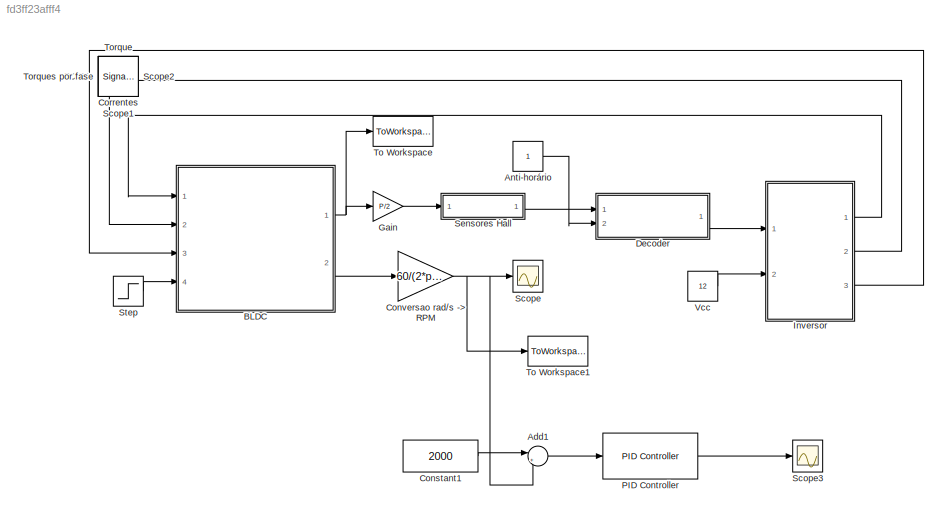
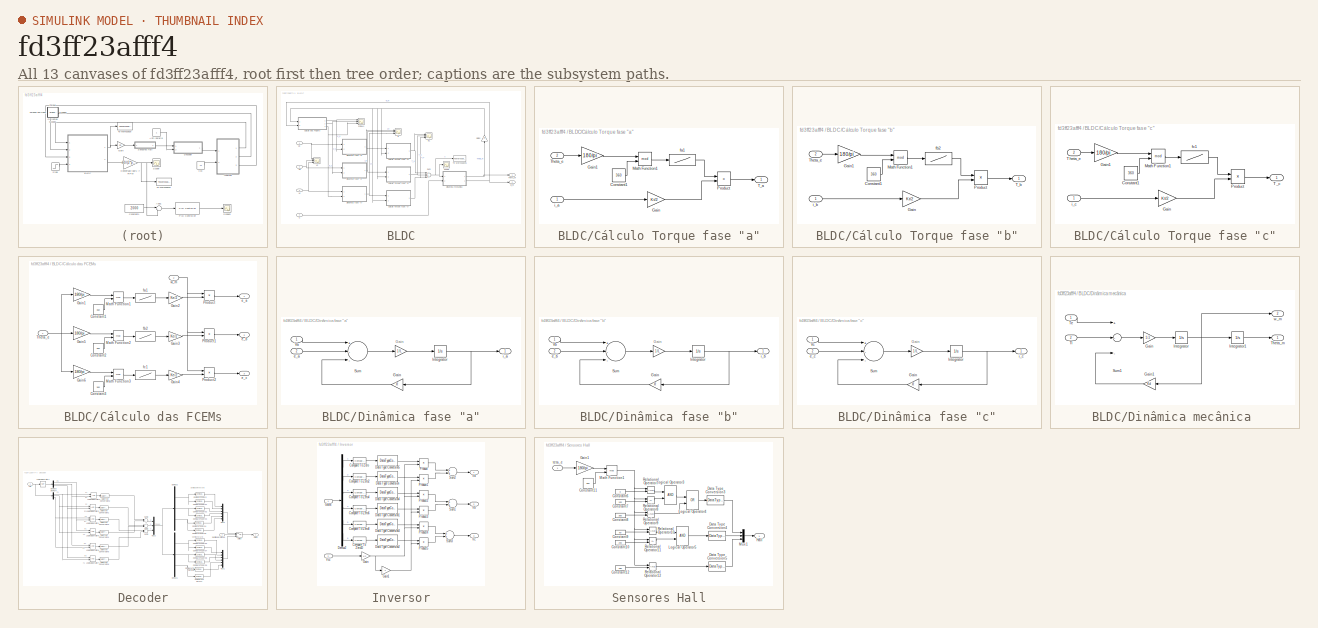
[diagram: thumbnail index - all 13 canvases of the model, root first then tree order]
MODEL slx_fd3ff23afff4
KIND model
BLOCK [Sum] Add1
  IconShape = round
  InputSameDT = off
  Inputs = |+-
  OutDataTypeStr = Inherit: Inherit via internal rule
  Ports = [2, 1]
  SaturateOnIntegerOverflow = off
BLOCK [Constant] Anti-horário
BLOCK [SubSystem] BLDC
  FunctionWithSeparateData = off
  MaskHideContents = off
  MinAlgLoopOccurrences = off
  Opaque = off
  Ports = [4, 2]
  PropExecContextOutsideSubsystem = off
  RTWSystemCode = Auto
  RequestExecContextInheritance = off
BLOCK [SubSystem] BLDC/Cálculo Torque fase "a"
  FunctionWithSeparateData = off
  MaskHideContents = off
  MinAlgLoopOccurrences = off
  Opaque = off
  Ports = [2, 1]
  PropExecContextOutsideSubsystem = off
  RTWSystemCode = Auto
  RequestExecContextInheritance = off
BLOCK [Constant] BLDC/Cálculo Torque fase "a"/Constant1
  Value = 360
BLOCK [Gain] BLDC/Cálculo Torque fase "a"/Gain
  Gain = Kt/2
  OutDataTypeStr = Inherit: Inherit via internal rule
  ParamDataTypeStr = Inherit: Inherit via internal rule
  SaturateOnIntegerOverflow = off
BLOCK [Gain] BLDC/Cálculo Torque fase "a"/Gain1
  Gain = 180/pi
  OutDataTypeStr = Inherit: Inherit via internal rule
  ParamDataTypeStr = Inherit: Inherit via internal rule
  SaturateOnIntegerOverflow = off
BLOCK [Math] BLDC/Cálculo Torque fase "a"/Math Function1
  Operator = mod
  Ports = [2, 1]
BLOCK [Product] BLDC/Cálculo Torque fase "a"/Product
  InputSameDT = off
  OutDataTypeStr = Inherit: Inherit via internal rule
  Ports = [2, 1]
  SaturateOnIntegerOverflow = off
BLOCK [Outport] BLDC/Cálculo Torque fase "a"/T_a
  IconDisplay = Port number
BLOCK [Inport] BLDC/Cálculo Torque fase "a"/Theta_e
  IconDisplay = Port number
  Port = 2
BLOCK [Lookup] BLDC/Cálculo Torque fase "a"/fa1
  InputValues = [0 30 60 90 120 150 180 210 240 270 300 330 360]
  SaturateOnIntegerOverflow = off
  Table = [ 1 1 1 0 -1 -1 -1 -1 -1 0 1 1 1]
BLOCK [Inport] BLDC/Cálculo Torque fase "a"/i_a
  IconDisplay = Port number
BLOCK [SubSystem] BLDC/Cálculo Torque fase "b"
  FunctionWithSeparateData = off
  MaskHideContents = off
  MinAlgLoopOccurrences = off
  Opaque = off
  Ports = [2, 1]
  PropExecContextOutsideSubsystem = off
  RTWSystemCode = Auto
  RequestExecContextInheritance = off
BLOCK [Constant] BLDC/Cálculo Torque fase "b"/Constant1
  Value = 360
BLOCK [Gain] BLDC/Cálculo Torque fase "b"/Gain
  Gain = Kt/2
  OutDataTypeStr = Inherit: Inherit via internal rule
  ParamDataTypeStr = Inherit: Inherit via internal rule
  SaturateOnIntegerOverflow = off
BLOCK [Gain] BLDC/Cálculo Torque fase "b"/Gain1
  Gain = 180/pi
  OutDataTypeStr = Inherit: Inherit via internal rule
  ParamDataTypeStr = Inherit: Inherit via internal rule
  SaturateOnIntegerOverflow = off
BLOCK [Math] BLDC/Cálculo Torque fase "b"/Math Function1
  Operator = mod
  Ports = [2, 1]
BLOCK [Product] BLDC/Cálculo Torque fase "b"/Product
  InputSameDT = off
  OutDataTypeStr = Inherit: Inherit via internal rule
  Ports = [2, 1]
  SaturateOnIntegerOverflow = off
BLOCK [Outport] BLDC/Cálculo Torque fase "b"/T_b
  IconDisplay = Port number
BLOCK [Inport] BLDC/Cálculo Torque fase "b"/Theta_e
  IconDisplay = Port number
  Port = 2
BLOCK [Lookup] BLDC/Cálculo Torque fase "b"/fb2
  InputValues = [0 30 60 90 120 150 180 210 240 270 300 330 360]
  SaturateOnIntegerOverflow = off
  Table = [-1 0 1 1 1 1 1 0 -1 -1 -1 -1 -1]
BLOCK [Inport] BLDC/Cálculo Torque fase "b"/i_b
  IconDisplay = Port number
BLOCK [SubSystem] BLDC/Cálculo Torque fase "c"
  FunctionWithSeparateData = off
  MaskHideContents = off
  MinAlgLoopOccurrences = off
  Opaque = off
  Ports = [2, 1]
  PropExecContextOutsideSubsystem = off
  RTWSystemCode = Auto
  RequestExecContextInheritance = off
BLOCK [Constant] BLDC/Cálculo Torque fase "c"/Constant1
  Value = 360
BLOCK [Gain] BLDC/Cálculo Torque fase "c"/Gain
  Gain = Kt/2
  OutDataTypeStr = Inherit: Inherit via internal rule
  ParamDataTypeStr = Inherit: Inherit via internal rule
  SaturateOnIntegerOverflow = off
BLOCK [Gain] BLDC/Cálculo Torque fase "c"/Gain1
  Gain = 180/pi
  OutDataTypeStr = Inherit: Inherit via internal rule
  ParamDataTypeStr = Inherit: Inherit via internal rule
  SaturateOnIntegerOverflow = off
BLOCK [Math] BLDC/Cálculo Torque fase "c"/Math Function1
  Operator = mod
  Ports = [2, 1]
BLOCK [Product] BLDC/Cálculo Torque fase "c"/Product
  InputSameDT = off
  OutDataTypeStr = Inherit: Inherit via internal rule
  Ports = [2, 1]
  SaturateOnIntegerOverflow = off
BLOCK [Outport] BLDC/Cálculo Torque fase "c"/T_c
  IconDisplay = Port number
BLOCK [Inport] BLDC/Cálculo Torque fase "c"/Theta_e
  IconDisplay = Port number
  Port = 2
BLOCK [Lookup] BLDC/Cálculo Torque fase "c"/fc1
  InputValues = [0 30 60 90 120 150 180 210 240 270 300 330 360]
  SaturateOnIntegerOverflow = off
  Table = [-1 -1 -1 -1 -1 0 1 1 1 1 1 0 -1]
BLOCK [Inport] BLDC/Cálculo Torque fase "c"/i_c
  IconDisplay = Port number
BLOCK [SubSystem] BLDC/Cálculo das FCEMs
  FunctionWithSeparateData = off
  MaskHideContents = off
  MinAlgLoopOccurrences = off
  Opaque = off
  Ports = [2, 3]
  PropExecContextOutsideSubsystem = off
  RTWSystemCode = Auto
  RequestExecContextInheritance = off
BLOCK [Constant] BLDC/Cálculo das FCEMs/Constant1
  Value = 360
BLOCK [Constant] BLDC/Cálculo das FCEMs/Constant2
  Value = 360
BLOCK [Constant] BLDC/Cálculo das FCEMs/Constant3
  Value = 360
BLOCK [Gain] BLDC/Cálculo das FCEMs/Gain1
  Gain = 180/pi
  OutDataTypeStr = Inherit: Inherit via internal rule
  ParamDataTypeStr = Inherit: Inherit via internal rule
  SaturateOnIntegerOverflow = off
BLOCK [Gain] BLDC/Cálculo das FCEMs/Gain2
  Gain = Ke/2
  OutDataTypeStr = Inherit: Inherit via internal rule
  ParamDataTypeStr = Inherit: Inherit via internal rule
  SaturateOnIntegerOverflow = off
BLOCK [Gain] BLDC/Cálculo das FCEMs/Gain3
  Gain = Ke/2
  OutDataTypeStr = Inherit: Inherit via internal rule
  ParamDataTypeStr = Inherit: Inherit via internal rule
  SaturateOnIntegerOverflow = off
BLOCK [Gain] BLDC/Cálculo das FCEMs/Gain4
  Gain = Ke/2
  OutDataTypeStr = Inherit: Inherit via internal rule
  ParamDataTypeStr = Inherit: Inherit via internal rule
  SaturateOnIntegerOverflow = off
BLOCK [Gain] BLDC/Cálculo das FCEMs/Gain5
  Gain = 180/pi
  OutDataTypeStr = Inherit: Inherit via internal rule
  ParamDataTypeStr = Inherit: Inherit via internal rule
  SaturateOnIntegerOverflow = off
BLOCK [Gain] BLDC/Cálculo das FCEMs/Gain6
  Gain = 180/pi
  OutDataTypeStr = Inherit: Inherit via internal rule
  ParamDataTypeStr = Inherit: Inherit via internal rule
  SaturateOnIntegerOverflow = off
BLOCK [Math] BLDC/Cálculo das FCEMs/Math Function1
  Operator = mod
  Ports = [2, 1]
BLOCK [Math] BLDC/Cálculo das FCEMs/Math Function2
  Operator = mod
  Ports = [2, 1]
BLOCK [Math] BLDC/Cálculo das FCEMs/Math Function3
  Operator = mod
  Ports = [2, 1]
BLOCK [Product] BLDC/Cálculo das FCEMs/Product
  InputSameDT = off
  OutDataTypeStr = Inherit: Inherit via internal rule
  Ports = [2, 1]
  SaturateOnIntegerOverflow = off
BLOCK [Product] BLDC/Cálculo das FCEMs/Product1
  InputSameDT = off
  OutDataTypeStr = Inherit: Inherit via internal rule
  Ports = [2, 1]
  SaturateOnIntegerOverflow = off
BLOCK [Product] BLDC/Cálculo das FCEMs/Product2
  InputSameDT = off
  OutDataTypeStr = Inherit: Inherit via internal rule
  Ports = [2, 1]
  SaturateOnIntegerOverflow = off
BLOCK [Inport] BLDC/Cálculo das FCEMs/Theta_e
  IconDisplay = Port number
BLOCK [Outport] BLDC/Cálculo das FCEMs/e_a
  IconDisplay = Port number
BLOCK [Outport] BLDC/Cálculo das FCEMs/e_b
  IconDisplay = Port number
  Port = 2
BLOCK [Outport] BLDC/Cálculo das FCEMs/e_c
  IconDisplay = Port number
  Port = 3
BLOCK [Lookup] BLDC/Cálculo das FCEMs/fa1
  InputValues = [0 30 60 90 120 150 180 210 240 270 300 330 360]
  SaturateOnIntegerOverflow = off
  Table = [ 1 1 1 0 -1 -1 -1 -1 -1 0 1 1 1]
BLOCK [Lookup] BLDC/Cálculo das FCEMs/fb2
  InputValues = [0 30 60 90 120 150 180 210 240 270 300 330 360]
  SaturateOnIntegerOverflow = off
  Table = [-1 0 1 1 1 1 1 0 -1 -1 -1 -1 -1]
BLOCK [Lookup] BLDC/Cálculo das FCEMs/fc1
  InputValues = [0 30 60 90 120 150 180 210 240 270 300 330 360]
  SaturateOnIntegerOverflow = off
  Table = [-1 -1 -1 -1 -1 0 1 1 1 1 1 0 -1]
BLOCK [Inport] BLDC/Cálculo das FCEMs/w_m
  IconDisplay = Port number
  Port = 2
BLOCK [SubSystem] BLDC/Dinâmica fase "a"
  FunctionWithSeparateData = off
  MaskHideContents = off
  MinAlgLoopOccurrences = off
  Opaque = off
  Ports = [2, 1]
  PropExecContextOutsideSubsystem = off
  RTWSystemCode = Auto
  RequestExecContextInheritance = off
BLOCK [Gain] BLDC/Dinâmica fase "a"/ 
  Gain = 1/L
  OutDataTypeStr = Inherit: Inherit via internal rule
  ParamDataTypeStr = Inherit: Inherit via internal rule
  SaturateOnIntegerOverflow = off
BLOCK [Gain] BLDC/Dinâmica fase "a"/Gain
  Gain = R
  OutDataTypeStr = Inherit: Inherit via internal rule
  ParamDataTypeStr = Inherit: Inherit via internal rule
  SaturateOnIntegerOverflow = off
BLOCK [Integrator] BLDC/Dinâmica fase "a"/Integrator
  Ports = [1, 1]
BLOCK [Sum] BLDC/Dinâmica fase "a"/Sum
  InputSameDT = off
  Inputs = +--
  OutDataTypeStr = Inherit: Inherit via internal rule
  Ports = [3, 1]
  SaturateOnIntegerOverflow = off
BLOCK [Inport] BLDC/Dinâmica fase "a"/Va
  IconDisplay = Port number
BLOCK [Inport] BLDC/Dinâmica fase "a"/e_a
  IconDisplay = Port number
  Port = 2
BLOCK [Outport] BLDC/Dinâmica fase "a"/i_a
  IconDisplay = Port number
BLOCK [SubSystem] BLDC/Dinâmica fase "b"
  FunctionWithSeparateData = off
  MaskHideContents = off
  MinAlgLoopOccurrences = off
  Opaque = off
  Ports = [2, 1]
  PropExecContextOutsideSubsystem = off
  RTWSystemCode = Auto
  RequestExecContextInheritance = off
BLOCK [Gain] BLDC/Dinâmica fase "b"/ 
  Gain = 1/L
  OutDataTypeStr = Inherit: Inherit via internal rule
  ParamDataTypeStr = Inherit: Inherit via internal rule
  SaturateOnIntegerOverflow = off
BLOCK [Gain] BLDC/Dinâmica fase "b"/Gain
  Gain = R
  OutDataTypeStr = Inherit: Inherit via internal rule
  ParamDataTypeStr = Inherit: Inherit via internal rule
  SaturateOnIntegerOverflow = off
BLOCK [Integrator] BLDC/Dinâmica fase "b"/Integrator
  Ports = [1, 1]
BLOCK [Sum] BLDC/Dinâmica fase "b"/Sum
  InputSameDT = off
  Inputs = +--
  OutDataTypeStr = Inherit: Inherit via internal rule
  Ports = [3, 1]
  SaturateOnIntegerOverflow = off
BLOCK [Inport] BLDC/Dinâmica fase "b"/Vb
  IconDisplay = Port number
BLOCK [Inport] BLDC/Dinâmica fase "b"/e_b
  IconDisplay = Port number
  Port = 2
BLOCK [Outport] BLDC/Dinâmica fase "b"/i_b
  IconDisplay = Port number
BLOCK [SubSystem] BLDC/Dinâmica fase "c"
  FunctionWithSeparateData = off
  MaskHideContents = off
  MinAlgLoopOccurrences = off
  Opaque = off
  Ports = [2, 1]
  PropExecContextOutsideSubsystem = off
  RTWSystemCode = Auto
  RequestExecContextInheritance = off
BLOCK [Gain] BLDC/Dinâmica fase "c"/ 
  Gain = 1/L
  OutDataTypeStr = Inherit: Inherit via internal rule
  ParamDataTypeStr = Inherit: Inherit via internal rule
  SaturateOnIntegerOverflow = off
BLOCK [Gain] BLDC/Dinâmica fase "c"/Gain
  Gain = R
  OutDataTypeStr = Inherit: Inherit via internal rule
  ParamDataTypeStr = Inherit: Inherit via internal rule
  SaturateOnIntegerOverflow = off
BLOCK [Integrator] BLDC/Dinâmica fase "c"/Integrator
  Ports = [1, 1]
BLOCK [Sum] BLDC/Dinâmica fase "c"/Sum
  InputSameDT = off
  Inputs = +--
  OutDataTypeStr = Inherit: Inherit via internal rule
  Ports = [3, 1]
  SaturateOnIntegerOverflow = off
BLOCK [Inport] BLDC/Dinâmica fase "c"/Vc
  IconDisplay = Port number
BLOCK [Inport] BLDC/Dinâmica fase "c"/e_c
  IconDisplay = Port number
  Port = 2
BLOCK [Outport] BLDC/Dinâmica fase "c"/i_c
  IconDisplay = Port number
BLOCK [SubSystem] BLDC/Dinâmica mecânica 
  FunctionWithSeparateData = off
  MaskHideContents = off
  MinAlgLoopOccurrences = off
  Opaque = off
  Ports = [2, 2]
  PropExecContextOutsideSubsystem = off
  RTWSystemCode = Auto
  RequestExecContextInheritance = off
BLOCK [Gain] BLDC/Dinâmica mecânica /Gain
  Gain = 1/J
  OutDataTypeStr = Inherit: Inherit via internal rule
  ParamDataTypeStr = Inherit: Inherit via internal rule
  SaturateOnIntegerOverflow = off
BLOCK [Gain] BLDC/Dinâmica mecânica /Gain1
  Gain = Kd
  OutDataTypeStr = Inherit: Inherit via internal rule
  ParamDataTypeStr = Inherit: Inherit via internal rule
  SaturateOnIntegerOverflow = off
BLOCK [Integrator] BLDC/Dinâmica mecânica /Integrator
  Ports = [1, 1]
BLOCK [Integrator] BLDC/Dinâmica mecânica /Integrator1
  Ports = [1, 1]
BLOCK [Sum] BLDC/Dinâmica mecânica /Sum1
  InputSameDT = off
  Inputs = +--
  OutDataTypeStr = Inherit: Inherit via internal rule
  Ports = [3, 1]
  SaturateOnIntegerOverflow = off
BLOCK [Inport] BLDC/Dinâmica mecânica /Te
  IconDisplay = Port number
BLOCK [Outport] BLDC/Dinâmica mecânica /Theta_m
  IconDisplay = Port number
BLOCK [Inport] BLDC/Dinâmica mecânica /Tl
  IconDisplay = Port number
  Port = 2
BLOCK [Outport] BLDC/Dinâmica mecânica /w_m
  IconDisplay = Port number
  Port = 2
BLOCK [Scope] BLDC/FCEMs
  DataFormat = StructureWithTime
  Floating = off
  LimitDataPoints = off
  NumInputPorts = 3
  Ports = [3]
  SampleTime = 0
  SaveName = ScopeData5
  ShowLegends = off
  TimeRange = 1
  YMax = 510~5~5
  YMin = 420~-5~-5
  ZoomMode = yonly
BLOCK [Gain] BLDC/Gain2
  Gain = P/2
  OutDataTypeStr = Inherit: Inherit via internal rule
  ParamDataTypeStr = Inherit: Inherit via internal rule
  SaturateOnIntegerOverflow = off
BLOCK [Scope] BLDC/Scope
  DataFormat = StructureWithTime
  Floating = off
  LimitDataPoints = off
  NumInputPorts = 1
  Ports = [1]
  SampleTime = 0
  SaveName = ScopeData4
  ShowLegends = off
  TimeRange = 1
  YMax = 510
  YMin = 420
  ZoomMode = yonly
BLOCK [Sum] BLDC/Sum
  InputSameDT = off
  Inputs = +++
  OutDataTypeStr = Inherit: Inherit via internal rule
  Ports = [3, 1]
  SaturateOnIntegerOverflow = off
BLOCK [Outport] BLDC/Theta_m
  IconDisplay = Port number
BLOCK [Inport] BLDC/Tl
  IconDisplay = Port number
  Port = 4
BLOCK [ToWorkspace] BLDC/To Workspace1
  MaxDataPoints = inf
  Ports = [1]
  SampleTime = -1
  SaveFormat = Timeseries
  VariableName = Te_BLDC
BLOCK [Inport] BLDC/Va
  IconDisplay = Port number
BLOCK [Inport] BLDC/Vb
  IconDisplay = Port number
  Port = 2
BLOCK [Inport] BLDC/Vc
  IconDisplay = Port number
  Port = 3
BLOCK [Scope] BLDC/Vs
  DataFormat = StructureWithTime
  Floating = off
  LimitDataPoints = off
  NumInputPorts = 3
  Ports = [3]
  SampleTime = 0
  SaveName = ScopeData2
  ShowLegends = off
  TimeRange = 1
  YMax = 510~5~5
  YMin = 420~-5~-5
  ZoomMode = xonly
BLOCK [Scope] BLDC/is
  DataFormat = StructureWithTime
  Floating = off
  LimitDataPoints = off
  NumInputPorts = 3
  Ports = [3]
  SampleTime = 0
  SaveName = ScopeData3
  ShowLegends = off
  TimeRange = 1
  YMax = 510~5~5
  YMin = 420~-5~-5
  ZoomMode = xonly
BLOCK [Scope] BLDC/is1
  DataFormat = StructureWithTime
  Floating = off
  LimitDataPoints = off
  NumInputPorts = 3
  Ports = [3]
  SampleTime = 0
  SaveName = ScopeData6
  ShowLegends = off
  TimeRange = 1
  YMax = 510~5~5
  YMin = 420~-5~-5
  ZoomMode = xonly
BLOCK [Outport] BLDC/w_m
  IconDisplay = Port number
  Port = 2
BLOCK [Constant] Constant1
  Value = 2000
BLOCK [Gain] Conversao rad//s -> RPM
  Gain = 60/(2*pi)
  OutDataTypeStr = Inherit: Inherit via internal rule
  ParamDataTypeStr = Inherit: Inherit via internal rule
  SaturateOnIntegerOverflow = off
BLOCK [SignalViewerScope] Correntes
  IOType = viewer
  LimitDataPoints = off
  MaxDataPoints = 7500
  NumInputPorts = 3
  Ports = []
  RefreshTime = 0.035000
  ShowDataMarkers = off
  ShowLegends = off
  YMax = 5~5~5
  YMin = -5~-5~-5
  ZoomMode = yonly
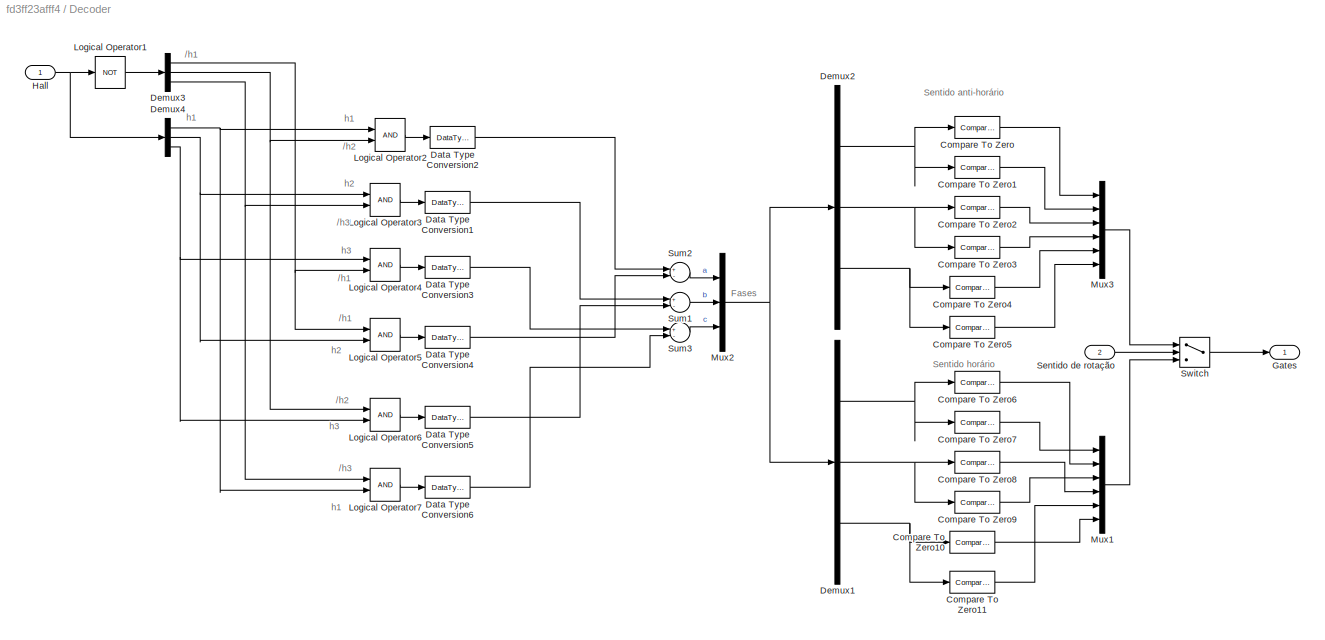
BLOCK [SubSystem] Decoder
  FunctionWithSeparateData = off
  MaskHideContents = off
  MinAlgLoopOccurrences = off
  Opaque = off
  Ports = [2, 1]
  PropExecContextOutsideSubsystem = off
  RTWSystemCode = Auto
  RequestExecContextInheritance = off
BLOCK [Reference] Decoder/Compare To Zero  REF=simulink/Logic and Bit
Operations/Compare
To Zero
  OutDataTypeStr = boolean
  Ports = [1, 1]
  SourceBlock = simulink/Logic and Bit\nOperations/Compare\nTo Zero
  SourceType = Compare To Zero
  ZeroCross = off
  relop = >
BLOCK [Reference] Decoder/Compare To Zero1  REF=simulink/Logic and Bit
Operations/Compare
To Zero
  OutDataTypeStr = boolean
  Ports = [1, 1]
  SourceBlock = simulink/Logic and Bit\nOperations/Compare\nTo Zero
  SourceType = Compare To Zero
  ZeroCross = off
  relop = <
BLOCK [Reference] Decoder/Compare To Zero10  REF=simulink/Logic and Bit
Operations/Compare
To Zero
  OutDataTypeStr = boolean
  Ports = [1, 1]
  SourceBlock = simulink/Logic and Bit\nOperations/Compare\nTo Zero
  SourceType = Compare To Zero
  ZeroCross = off
  relop = >
BLOCK [Reference] Decoder/Compare To Zero11  REF=simulink/Logic and Bit
Operations/Compare
To Zero
  OutDataTypeStr = boolean
  Ports = [1, 1]
  SourceBlock = simulink/Logic and Bit\nOperations/Compare\nTo Zero
  SourceType = Compare To Zero
  ZeroCross = off
  relop = <
BLOCK [Reference] Decoder/Compare To Zero2  REF=simulink/Logic and Bit
Operations/Compare
To Zero
  OutDataTypeStr = boolean
  Ports = [1, 1]
  SourceBlock = simulink/Logic and Bit\nOperations/Compare\nTo Zero
  SourceType = Compare To Zero
  ZeroCross = off
  relop = >
BLOCK [Reference] Decoder/Compare To Zero3  REF=simulink/Logic and Bit
Operations/Compare
To Zero
  OutDataTypeStr = boolean
  Ports = [1, 1]
  SourceBlock = simulink/Logic and Bit\nOperations/Compare\nTo Zero
  SourceType = Compare To Zero
  ZeroCross = off
  relop = <
BLOCK [Reference] Decoder/Compare To Zero4  REF=simulink/Logic and Bit
Operations/Compare
To Zero
  OutDataTypeStr = boolean
  Ports = [1, 1]
  SourceBlock = simulink/Logic and Bit\nOperations/Compare\nTo Zero
  SourceType = Compare To Zero
  ZeroCross = off
  relop = >
BLOCK [Reference] Decoder/Compare To Zero5  REF=simulink/Logic and Bit
Operations/Compare
To Zero
  OutDataTypeStr = boolean
  Ports = [1, 1]
  SourceBlock = simulink/Logic and Bit\nOperations/Compare\nTo Zero
  SourceType = Compare To Zero
  ZeroCross = off
  relop = <
BLOCK [Reference] Decoder/Compare To Zero6  REF=simulink/Logic and Bit
Operations/Compare
To Zero
  OutDataTypeStr = boolean
  Ports = [1, 1]
  SourceBlock = simulink/Logic and Bit\nOperations/Compare\nTo Zero
  SourceType = Compare To Zero
  ZeroCross = off
  relop = >
BLOCK [Reference] Decoder/Compare To Zero7  REF=simulink/Logic and Bit
Operations/Compare
To Zero
  OutDataTypeStr = boolean
  Ports = [1, 1]
  SourceBlock = simulink/Logic and Bit\nOperations/Compare\nTo Zero
  SourceType = Compare To Zero
  ZeroCross = off
  relop = <
BLOCK [Reference] Decoder/Compare To Zero8  REF=simulink/Logic and Bit
Operations/Compare
To Zero
  OutDataTypeStr = boolean
  Ports = [1, 1]
  SourceBlock = simulink/Logic and Bit\nOperations/Compare\nTo Zero
  SourceType = Compare To Zero
  ZeroCross = off
  relop = >
BLOCK [Reference] Decoder/Compare To Zero9  REF=simulink/Logic and Bit
Operations/Compare
To Zero
  OutDataTypeStr = boolean
  Ports = [1, 1]
  SourceBlock = simulink/Logic and Bit\nOperations/Compare\nTo Zero
  SourceType = Compare To Zero
  ZeroCross = off
  relop = <
BLOCK [DataTypeConversion] Decoder/Data Type Conversion1
  RndMeth = Floor
  SaturateOnIntegerOverflow = off
BLOCK [DataTypeConversion] Decoder/Data Type Conversion2
  RndMeth = Floor
  SaturateOnIntegerOverflow = off
BLOCK [DataTypeConversion] Decoder/Data Type Conversion3
  RndMeth = Floor
  SaturateOnIntegerOverflow = off
BLOCK [DataTypeConversion] Decoder/Data Type Conversion4
  RndMeth = Floor
  SaturateOnIntegerOverflow = off
BLOCK [DataTypeConversion] Decoder/Data Type Conversion5
  RndMeth = Floor
  SaturateOnIntegerOverflow = off
BLOCK [DataTypeConversion] Decoder/Data Type Conversion6
  RndMeth = Floor
  SaturateOnIntegerOverflow = off
BLOCK [Demux] Decoder/Demux1
  DisplayOption = bar
  Outputs = 3
  Ports = [1, 3]
BLOCK [Demux] Decoder/Demux2
  DisplayOption = bar
  Outputs = 3
  Ports = [1, 3]
BLOCK [Demux] Decoder/Demux3
  DisplayOption = bar
  Outputs = 3
  Ports = [1, 3]
BLOCK [Demux] Decoder/Demux4
  DisplayOption = bar
  Outputs = 3
  Ports = [1, 3]
BLOCK [Outport] Decoder/Gates
  IconDisplay = Port number
BLOCK [Inport] Decoder/Hall 
  IconDisplay = Port number
BLOCK [Logic] Decoder/Logical Operator1
  AllPortsSameDT = off
  Operator = NOT
  OutDataTypeStr = boolean
  Ports = [1, 1]
BLOCK [Logic] Decoder/Logical Operator2
  AllPortsSameDT = off
  OutDataTypeStr = boolean
  Ports = [2, 1]
BLOCK [Logic] Decoder/Logical Operator3
  AllPortsSameDT = off
  OutDataTypeStr = boolean
  Ports = [2, 1]
BLOCK [Logic] Decoder/Logical Operator4
  AllPortsSameDT = off
  OutDataTypeStr = boolean
  Ports = [2, 1]
BLOCK [Logic] Decoder/Logical Operator5
  AllPortsSameDT = off
  OutDataTypeStr = boolean
  Ports = [2, 1]
BLOCK [Logic] Decoder/Logical Operator6
  AllPortsSameDT = off
  OutDataTypeStr = boolean
  Ports = [2, 1]
BLOCK [Logic] Decoder/Logical Operator7
  AllPortsSameDT = off
  OutDataTypeStr = boolean
  Ports = [2, 1]
BLOCK [Mux] Decoder/Mux1
  DisplayOption = bar
  Inputs = 6
  Ports = [6, 1]
BLOCK [Mux] Decoder/Mux2
  DisplayOption = bar
  Inputs = 3
  Ports = [3, 1]
BLOCK [Mux] Decoder/Mux3
  DisplayOption = bar
  Inputs = 6
  Ports = [6, 1]
BLOCK [Inport] Decoder/Sentido de rotação
  IconDisplay = Port number
  Port = 2
BLOCK [Sum] Decoder/Sum1
  InputSameDT = off
  Inputs = +-
  OutDataTypeStr = double
  Ports = [2, 1]
  SaturateOnIntegerOverflow = off
BLOCK [Sum] Decoder/Sum2
  InputSameDT = off
  Inputs = +-
  OutDataTypeStr = double
  Ports = [2, 1]
  SaturateOnIntegerOverflow = off
BLOCK [Sum] Decoder/Sum3
  InputSameDT = off
  Inputs = +-
  OutDataTypeStr = double
  Ports = [2, 1]
  SaturateOnIntegerOverflow = off
BLOCK [Switch] Decoder/Switch
  Criteria = u2 > Threshold
  InputSameDT = off
  SaturateOnIntegerOverflow = off
BLOCK [SignalViewerScope] FCEMs
  IOType = viewer
  LimitDataPoints = off
  MaxDataPoints = 7500
  NumInputPorts = 3
  Ports = []
  RefreshTime = 0.035000
  SaveName = ScopeData2
  ShowDataMarkers = off
  ShowLegends = off
  YMax = 5~5~5
  YMin = -5~-5~-5
  ZoomMode = xonly
BLOCK [Gain] Gain
  Gain = P/2
  OutDataTypeStr = Inherit: Inherit via internal rule
  ParamDataTypeStr = Inherit: Inherit via internal rule
  SaturateOnIntegerOverflow = off
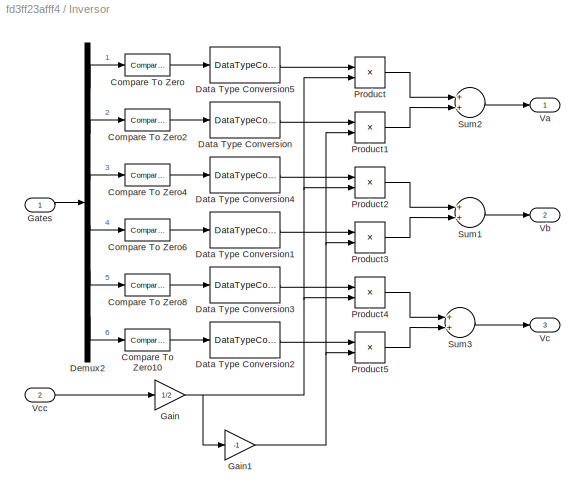
BLOCK [SubSystem] Inversor
  FunctionWithSeparateData = off
  MaskHideContents = off
  MinAlgLoopOccurrences = off
  Opaque = off
  Ports = [2, 3]
  PropExecContextOutsideSubsystem = off
  RTWSystemCode = Auto
  RequestExecContextInheritance = off
BLOCK [Reference] Inversor/Compare To Zero  REF=simulink/Logic and Bit
Operations/Compare
To Zero
  OutDataTypeStr = uint8
  Ports = [1, 1]
  SourceBlock = simulink/Logic and Bit\nOperations/Compare\nTo Zero
  SourceType = Compare To Zero
  ZeroCross = off
  relop = >
BLOCK [Reference] Inversor/Compare To Zero10  REF=simulink/Logic and Bit
Operations/Compare
To Zero
  OutDataTypeStr = boolean
  Ports = [1, 1]
  SourceBlock = simulink/Logic and Bit\nOperations/Compare\nTo Zero
  SourceType = Compare To Zero
  ZeroCross = off
  relop = >
BLOCK [Reference] Inversor/Compare To Zero2  REF=simulink/Logic and Bit
Operations/Compare
To Zero
  OutDataTypeStr = boolean
  Ports = [1, 1]
  SourceBlock = simulink/Logic and Bit\nOperations/Compare\nTo Zero
  SourceType = Compare To Zero
  ZeroCross = off
  relop = >
BLOCK [Reference] Inversor/Compare To Zero4  REF=simulink/Logic and Bit
Operations/Compare
To Zero
  OutDataTypeStr = uint8
  Ports = [1, 1]
  SourceBlock = simulink/Logic and Bit\nOperations/Compare\nTo Zero
  SourceType = Compare To Zero
  ZeroCross = off
  relop = >
BLOCK [Reference] Inversor/Compare To Zero6  REF=simulink/Logic and Bit
Operations/Compare
To Zero
  OutDataTypeStr = boolean
  Ports = [1, 1]
  SourceBlock = simulink/Logic and Bit\nOperations/Compare\nTo Zero
  SourceType = Compare To Zero
  ZeroCross = off
  relop = >
BLOCK [Reference] Inversor/Compare To Zero8  REF=simulink/Logic and Bit
Operations/Compare
To Zero
  OutDataTypeStr = boolean
  Ports = [1, 1]
  SourceBlock = simulink/Logic and Bit\nOperations/Compare\nTo Zero
  SourceType = Compare To Zero
  ZeroCross = off
  relop = >
BLOCK [DataTypeConversion] Inversor/Data Type Conversion
  OutDataTypeStr = double
  RndMeth = Floor
  SaturateOnIntegerOverflow = off
BLOCK [DataTypeConversion] Inversor/Data Type Conversion1
  OutDataTypeStr = double
  RndMeth = Floor
  SaturateOnIntegerOverflow = off
BLOCK [DataTypeConversion] Inversor/Data Type Conversion2
  OutDataTypeStr = double
  RndMeth = Floor
  SaturateOnIntegerOverflow = off
BLOCK [DataTypeConversion] Inversor/Data Type Conversion3
  OutDataTypeStr = double
  RndMeth = Floor
  SaturateOnIntegerOverflow = off
BLOCK [DataTypeConversion] Inversor/Data Type Conversion4
  OutDataTypeStr = double
  RndMeth = Floor
  SaturateOnIntegerOverflow = off
BLOCK [DataTypeConversion] Inversor/Data Type Conversion5
  OutDataTypeStr = double
  RndMeth = Floor
  SaturateOnIntegerOverflow = off
BLOCK [Demux] Inversor/Demux2
  DisplayOption = bar
  Outputs = 6
  Ports = [1, 6]
BLOCK [Gain] Inversor/Gain
  Gain = 1/2
  OutDataTypeStr = Inherit: Inherit via internal rule
  ParamDataTypeStr = Inherit: Inherit via internal rule
  SaturateOnIntegerOverflow = off
BLOCK [Gain] Inversor/Gain1
  Gain = -1
  OutDataTypeStr = Inherit: Inherit via internal rule
  ParamDataTypeStr = Inherit: Inherit via internal rule
  SaturateOnIntegerOverflow = off
BLOCK [Inport] Inversor/Gates
  IconDisplay = Port number
BLOCK [Product] Inversor/Product
  InputSameDT = off
  OutDataTypeStr = Inherit: Inherit via internal rule
  Ports = [2, 1]
  SaturateOnIntegerOverflow = off
BLOCK [Product] Inversor/Product1
  InputSameDT = off
  OutDataTypeStr = Inherit: Inherit via internal rule
  Ports = [2, 1]
  SaturateOnIntegerOverflow = off
BLOCK [Product] Inversor/Product2
  InputSameDT = off
  OutDataTypeStr = Inherit: Inherit via internal rule
  Ports = [2, 1]
  SaturateOnIntegerOverflow = off
BLOCK [Product] Inversor/Product3
  InputSameDT = off
  OutDataTypeStr = Inherit: Inherit via internal rule
  Ports = [2, 1]
  SaturateOnIntegerOverflow = off
BLOCK [Product] Inversor/Product4
  InputSameDT = off
  OutDataTypeStr = Inherit: Inherit via internal rule
  Ports = [2, 1]
  SaturateOnIntegerOverflow = off
BLOCK [Product] Inversor/Product5
  InputSameDT = off
  OutDataTypeStr = Inherit: Inherit via internal rule
  Ports = [2, 1]
  SaturateOnIntegerOverflow = off
BLOCK [Sum] Inversor/Sum1
  InputSameDT = off
  OutDataTypeStr = Inherit: Inherit via internal rule
  Ports = [2, 1]
BLOCK [Sum] Inversor/Sum2
  InputSameDT = off
  OutDataTypeStr = Inherit: Inherit via internal rule
  Ports = [2, 1]
BLOCK [Sum] Inversor/Sum3
  InputSameDT = off
  OutDataTypeStr = Inherit: Inherit via internal rule
  Ports = [2, 1]
BLOCK [Outport] Inversor/Va
  IconDisplay = Port number
BLOCK [Outport] Inversor/Vb
  IconDisplay = Port number
  Port = 2
BLOCK [Outport] Inversor/Vc
  IconDisplay = Port number
  Port = 3
BLOCK [Inport] Inversor/Vcc
  IconDisplay = Port number
  Port = 2
BLOCK [Reference] PID Controller  REF=simulink/Continuous/PID Controller
  AntiWindupMode = none
  Controller = PI
  D = 0
  DOutDataTypeStr = Inherit: Inherit via internal rule
  DOutMax = [ ]
  DOutMin = [ ]
  DParamDataTypeStr = Inherit: Inherit via internal rule
  DParamMax = [ ]
  DParamMin = [ ]
  ExternalReset = none
  FilterContinuousStateAttributes = ''
  FilterMethod = Forward Euler
  FilterOutDataTypeStr = Inherit: Inherit via internal rule
  FilterOutMax = [ ]
  FilterOutMin = [ ]
  FilterRTWStateStorageClass = Auto
  FilterStateMustResolveToSignalObject = off
  Form = Parallel
  I = 1.64756402232112
  IOutDataTypeStr = Inherit: Inherit via internal rule
  IOutMax = [ ]
  IOutMin = [ ]
  IParamDataTypeStr = Inherit: Inherit via internal rule
  IParamMax = [ ]
  IParamMin = [ ]
  IgnoreLimit = off
  InitialConditionForFilter = 0
  InitialConditionForIntegrator = 8.9768
  InitialConditionSource = internal
  IntegratorContinuousStateAttributes = ''
  IntegratorMethod = Forward Euler
  IntegratorOutDataTypeStr = Inherit: Inherit via internal rule
  IntegratorOutMax = [ ]
  IntegratorOutMin = [ ]
  IntegratorRTWStateStorageClass = Auto
  IntegratorStateMustResolveToSignalObject = off
  Kb = 1
  KbOutDataTypeStr = Inherit: Inherit via internal rule
  KbOutMax = [ ]
  KbOutMin = [ ]
  KbParamDataTypeStr = Inherit: Inherit via internal rule
  KbParamMax = [ ]
  KbParamMin = [ ]
  Kt = 1
  KtOutDataTypeStr = Inherit: Inherit via internal rule
  KtOutMax = [ ]
  KtOutMin = [ ]
  KtParamDataTypeStr = Inherit: Inherit via internal rule
  KtParamMax = [ ]
  KtParamMin = [ ]
  LimitOutput = on
  LinearizeAsGain = off
  LockScale = off
  LowerSaturationLimit = -12
  N = 100
  NOutDataTypeStr = Inherit: Inherit via internal rule
  NOutMax = [ ]
  NOutMin = [ ]
  NParamDataTypeStr = Inherit: Inherit via internal rule
  NParamMax = [ ]
  NParamMin = [ ]
  P = 0.0147690941731554
  POutDataTypeStr = Inherit: Inherit via internal rule
  POutMax = [ ]
  POutMin = [ ]
  PParamDataTypeStr = Inherit: Inherit via internal rule
  PParamMax = [ ]
  PParamMin = [ ]
  Ports = [1, 1]
  RndMeth = Floor
  SampleTime = 1
  SaturateOnIntegerOverflow = off
  SaturationOutDataTypeStr = Inherit: Same as input
  SaturationOutMax = [ ]
  SaturationOutMin = [ ]
  SourceBlock = simulink/Continuous/PID Controller
  SourceType = PID 1dof
  SumAccumDataTypeStr = Inherit: Inherit via internal rule
  SumDAccumDataTypeStr = Inherit: Inherit via internal rule
  SumDOutDataTypeStr = Inherit: Inherit via internal rule
  SumDOutMax = [ ]
  SumDOutMin = [ ]
  SumI1AccumDataTypeStr = Inherit: Inherit via internal rule
  SumI1OutDataTypeStr = Inherit: Inherit via internal rule
  SumI1OutMax = [ ]
  SumI1OutMin = [ ]
  SumI2AccumDataTypeStr = Inherit: Inherit via internal rule
  SumI2OutDataTypeStr = Inherit: Inherit via internal rule
  SumI2OutMax = [ ]
  SumI2OutMin = [ ]
  SumI3AccumDataTypeStr = Inherit: Inherit via internal rule
  SumI3OutDataTypeStr = Inherit: Inherit via internal rule
  SumI3OutMax = [ ]
  SumI3OutMin = [ ]
  SumOutDataTypeStr = Inherit: Inherit via internal rule
  SumOutMax = [ ]
  SumOutMin = [ ]
  TimeDomain = Continuous-time
  TrackingMode = off
  UpperSaturationLimit = 12
  ZeroCross = off
BLOCK [Scope] Scope
  DataFormat = StructureWithTime
  Floating = off
  LimitDataPoints = off
  NumInputPorts = 1
  Ports = [1]
  SampleTime = 0
  ShowLegends = off
  TimeRange = 1
  YMax = 510
  YMin = 420
  ZoomMode = yonly
BLOCK [SignalViewerScope] Scope1
  IOType = viewer
  LimitDataPoints = off
  MaxDataPoints = 7500
  NumInputPorts = 1
  Ports = []
  RefreshTime = 0.035000
  SaveName = ScopeData3
  ShowDataMarkers = off
  ShowLegends = off
BLOCK [SignalViewerScope] Scope2
  IOType = viewer
  LimitDataPoints = off
  MaxDataPoints = 7500
  NumInputPorts = 1
  Ports = []
  RefreshTime = 0.035000
  SaveName = ScopeData4
  ShowDataMarkers = off
  ShowLegends = off
BLOCK [Scope] Scope3
  DataFormat = StructureWithTime
  Floating = off
  LimitDataPoints = off
  NumInputPorts = 1
  Ports = [1]
  SampleTime = 0
  SaveName = ScopeData1
  ShowLegends = off
  TimeRange = 1
  YMax = 510
  YMin = 420
  ZoomMode = yonly
BLOCK [SubSystem] Sensores Hall
  AncestorBlock = spsPMSynchronousMachineModel/Discrete Trapezoidal/Hall effect sensor
  FunctionWithSeparateData = off
  MaskHideContents = off
  MinAlgLoopOccurrences = off
  Opaque = off
  Ports = [1, 1]
  PropExecContextOutsideSubsystem = off
  RTWSystemCode = Auto
  RequestExecContextInheritance = off
BLOCK [Constant] Sensores Hall/Constant10
  Value = 240
BLOCK [Constant] Sensores Hall/Constant11
  Value = 360
BLOCK [Constant] Sensores Hall/Constant12
  Value = 180
BLOCK [Constant] Sensores Hall/Constant6
  Value = 0
BLOCK [Constant] Sensores Hall/Constant7
  Value = 120
BLOCK [Constant] Sensores Hall/Constant8
  Value = 300
BLOCK [Constant] Sensores Hall/Constant9
  Value = 60
BLOCK [DataTypeConversion] Sensores Hall/Data Type Conversion3
BLOCK [DataTypeConversion] Sensores Hall/Data Type Conversion4
BLOCK [DataTypeConversion] Sensores Hall/Data Type Conversion5
BLOCK [Gain] Sensores Hall/Gain1
  Gain = 180/pi
  OutDataTypeStr = Inherit: Inherit via internal rule
  ParamDataTypeStr = Inherit: Inherit via internal rule
  SaturateOnIntegerOverflow = off
BLOCK [Outport] Sensores Hall/Hall
  IconDisplay = Port number
BLOCK [Logic] Sensores Hall/Logical Operator3
  AllPortsSameDT = off
  OutDataTypeStr = boolean
  Ports = [2, 1]
BLOCK [Logic] Sensores Hall/Logical Operator4
  AllPortsSameDT = off
  Operator = OR
  OutDataTypeStr = boolean
  Ports = [2, 1]
BLOCK [Logic] Sensores Hall/Logical Operator5
  AllPortsSameDT = off
  OutDataTypeStr = boolean
  Ports = [2, 1]
BLOCK [Math] Sensores Hall/Math Function1
  Operator = mod
  Ports = [2, 1]
BLOCK [Mux] Sensores Hall/Mux1
  DisplayOption = bar
  Inputs = 3
  Ports = [3, 1]
BLOCK [RelationalOperator] Sensores Hall/Relational Operator10
  Ports = [2, 1]
BLOCK [RelationalOperator] Sensores Hall/Relational Operator11
  Operator = <=
  Ports = [2, 1]
BLOCK [RelationalOperator] Sensores Hall/Relational Operator12
  Ports = [2, 1]
BLOCK [RelationalOperator] Sensores Hall/Relational Operator7
  Ports = [2, 1]
BLOCK [RelationalOperator] Sensores Hall/Relational Operator8
  Operator = <=
  Ports = [2, 1]
BLOCK [RelationalOperator] Sensores Hall/Relational Operator9
  Ports = [2, 1]
BLOCK [Inport] Sensores Hall/teta_e
  IconDisplay = Port number
BLOCK [Step] Step
  After = 0*2e-3
  SampleTime = 0
  Time = 0.2
BLOCK [ToWorkspace] To Workspace
  MaxDataPoints = inf
  Ports = [1]
  SampleTime = -1
  SaveFormat = Timeseries
  VariableName = Thetam_BLDC
BLOCK [ToWorkspace] To Workspace1
  MaxDataPoints = inf
  Ports = [1]
  SampleTime = -1
  SaveFormat = Timeseries
  VariableName = wm_BLDC
BLOCK [SignalViewerScope] Torque
  IOType = viewer
  LimitDataPoints = off
  MaxDataPoints = 7500
  NumInputPorts = 1
  Ports = []
  RefreshTime = 0.035000
  SaveName = Torque
  SaveToWorkspace = on
  ShowDataMarkers = off
  ShowLegends = off
  ZoomMode = xonly
BLOCK [SignalViewerScope] Torques por fase
  IOType = viewer
  LimitDataPoints = off
  MaxDataPoints = 7500
  NumInputPorts = 3
  Ports = []
  RefreshTime = 0.035000
  SaveName = ScopeData1
  ShowDataMarkers = off
  ShowLegends = off
  YMax = 5~5~5
  YMin = -5~-5~-5
  ZoomMode = xonly
BLOCK [Constant] Vcc
  Value = 12
ANNOTATION BLDC/Dinâmica fase "a": Gain
ANNOTATION BLDC/Dinâmica fase "b": Gain
ANNOTATION BLDC/Dinâmica fase "c": Gain
ANNOTATION Decoder: /h1
ANNOTATION Decoder: /h2
ANNOTATION Decoder: /h3
ANNOTATION Decoder: Fases
ANNOTATION Decoder: Sentido anti-horário
ANNOTATION Decoder: Sentido horário
ANNOTATION Decoder: h1
ANNOTATION Decoder: h2
ANNOTATION Decoder: h3
LINE Add1:1 -> PID Controller:1
LINE Anti-horário:1 -> Decoder:2
LINE BLDC/Cálculo Torque fase "a"/Constant1:1 -> BLDC/Cálculo Torque fase "a"/Math Function1:2
LINE BLDC/Cálculo Torque fase "a"/Gain1:1 -> BLDC/Cálculo Torque fase "a"/Math Function1:1
LINE BLDC/Cálculo Torque fase "a"/Gain:1 -> BLDC/Cálculo Torque fase "a"/Product:2
LINE BLDC/Cálculo Torque fase "a"/Math Function1:1 -> BLDC/Cálculo Torque fase "a"/fa1:1
LINE BLDC/Cálculo Torque fase "a"/Product:1 -> BLDC/Cálculo Torque fase "a"/T_a:1
LINE BLDC/Cálculo Torque fase "a"/Theta_e:1 -> BLDC/Cálculo Torque fase "a"/Gain1:1
LINE BLDC/Cálculo Torque fase "a"/fa1:1 -> BLDC/Cálculo Torque fase "a"/Product:1
LINE BLDC/Cálculo Torque fase "a"/i_a:1 -> BLDC/Cálculo Torque fase "a"/Gain:1
NET BLDC/Cálculo Torque fase "a":1 -> BLDC/Sum:1, BLDC/is1:1
LINE BLDC/Cálculo Torque fase "b"/Constant1:1 -> BLDC/Cálculo Torque fase "b"/Math Function1:2
LINE BLDC/Cálculo Torque fase "b"/Gain1:1 -> BLDC/Cálculo Torque fase "b"/Math Function1:1
LINE BLDC/Cálculo Torque fase "b"/Gain:1 -> BLDC/Cálculo Torque fase "b"/Product:2
LINE BLDC/Cálculo Torque fase "b"/Math Function1:1 -> BLDC/Cálculo Torque fase "b"/fb2:1
LINE BLDC/Cálculo Torque fase "b"/Product:1 -> BLDC/Cálculo Torque fase "b"/T_b:1
LINE BLDC/Cálculo Torque fase "b"/Theta_e:1 -> BLDC/Cálculo Torque fase "b"/Gain1:1
LINE BLDC/Cálculo Torque fase "b"/fb2:1 -> BLDC/Cálculo Torque fase "b"/Product:1
LINE BLDC/Cálculo Torque fase "b"/i_b:1 -> BLDC/Cálculo Torque fase "b"/Gain:1
NET BLDC/Cálculo Torque fase "b":1 -> BLDC/Sum:2, BLDC/is1:2
LINE BLDC/Cálculo Torque fase "c"/Constant1:1 -> BLDC/Cálculo Torque fase "c"/Math Function1:2
LINE BLDC/Cálculo Torque fase "c"/Gain1:1 -> BLDC/Cálculo Torque fase "c"/Math Function1:1
LINE BLDC/Cálculo Torque fase "c"/Gain:1 -> BLDC/Cálculo Torque fase "c"/Product:2
LINE BLDC/Cálculo Torque fase "c"/Math Function1:1 -> BLDC/Cálculo Torque fase "c"/fc1:1
LINE BLDC/Cálculo Torque fase "c"/Product:1 -> BLDC/Cálculo Torque fase "c"/T_c:1
LINE BLDC/Cálculo Torque fase "c"/Theta_e:1 -> BLDC/Cálculo Torque fase "c"/Gain1:1
LINE BLDC/Cálculo Torque fase "c"/fc1:1 -> BLDC/Cálculo Torque fase "c"/Product:1
LINE BLDC/Cálculo Torque fase "c"/i_c:1 -> BLDC/Cálculo Torque fase "c"/Gain:1
NET BLDC/Cálculo Torque fase "c":1 -> BLDC/Sum:3, BLDC/is1:3
LINE BLDC/Cálculo das FCEMs/Constant1:1 -> BLDC/Cálculo das FCEMs/Math Function1:2
LINE BLDC/Cálculo das FCEMs/Constant2:1 -> BLDC/Cálculo das FCEMs/Math Function2:2
LINE BLDC/Cálculo das FCEMs/Constant3:1 -> BLDC/Cálculo das FCEMs/Math Function3:2
LINE BLDC/Cálculo das FCEMs/Gain1:1 -> BLDC/Cálculo das FCEMs/Math Function1:1
LINE BLDC/Cálculo das FCEMs/Gain2:1 -> BLDC/Cálculo das FCEMs/Product:2
LINE BLDC/Cálculo das FCEMs/Gain3:1 -> BLDC/Cálculo das FCEMs/Product1:2
LINE BLDC/Cálculo das FCEMs/Gain4:1 -> BLDC/Cálculo das FCEMs/Product2:2
LINE BLDC/Cálculo das FCEMs/Gain5:1 -> BLDC/Cálculo das FCEMs/Math Function2:1
LINE BLDC/Cálculo das FCEMs/Gain6:1 -> BLDC/Cálculo das FCEMs/Math Function3:1
LINE BLDC/Cálculo das FCEMs/Math Function1:1 -> BLDC/Cálculo das FCEMs/fa1:1
LINE BLDC/Cálculo das FCEMs/Math Function2:1 -> BLDC/Cálculo das FCEMs/fb2:1
LINE BLDC/Cálculo das FCEMs/Math Function3:1 -> BLDC/Cálculo das FCEMs/fc1:1
LINE BLDC/Cálculo das FCEMs/Product1:1 -> BLDC/Cálculo das FCEMs/e_b:1
LINE BLDC/Cálculo das FCEMs/Product2:1 -> BLDC/Cálculo das FCEMs/e_c:1
LINE BLDC/Cálculo das FCEMs/Product:1 -> BLDC/Cálculo das FCEMs/e_a:1
NET BLDC/Cálculo das FCEMs/Theta_e:1 -> BLDC/Cálculo das FCEMs/Gain1:1, BLDC/Cálculo das FCEMs/Gain5:1, BLDC/Cálculo das FCEMs/Gain6:1
LINE BLDC/Cálculo das FCEMs/fa1:1 -> BLDC/Cálculo das FCEMs/Gain2:1
LINE BLDC/Cálculo das FCEMs/fb2:1 -> BLDC/Cálculo das FCEMs/Gain3:1
LINE BLDC/Cálculo das FCEMs/fc1:1 -> BLDC/Cálculo das FCEMs/Gain4:1
NET BLDC/Cálculo das FCEMs/w_m:1 -> BLDC/Cálculo das FCEMs/Product1:1, BLDC/Cálculo das FCEMs/Product2:1, BLDC/Cálculo das FCEMs/Product:1
NET BLDC/Cálculo das FCEMs:1 -> BLDC/Dinâmica fase "a":2, BLDC/FCEMs:1
NET BLDC/Cálculo das FCEMs:2 -> BLDC/Dinâmica fase "b":2, BLDC/FCEMs:2
NET BLDC/Cálculo das FCEMs:3 -> BLDC/Dinâmica fase "c":2, BLDC/FCEMs:3
LINE BLDC/Dinâmica fase "a"/ :1 -> BLDC/Dinâmica fase "a"/Integrator:1
LINE BLDC/Dinâmica fase "a"/Gain:1 -> BLDC/Dinâmica fase "a"/Sum:3
NET BLDC/Dinâmica fase "a"/Integrator:1 -> BLDC/Dinâmica fase "a"/Gain:1, BLDC/Dinâmica fase "a"/i_a:1
LINE BLDC/Dinâmica fase "a"/Sum:1 -> BLDC/Dinâmica fase "a"/ :1
LINE BLDC/Dinâmica fase "a"/Va:1 -> BLDC/Dinâmica fase "a"/Sum:1
LINE BLDC/Dinâmica fase "a"/e_a:1 -> BLDC/Dinâmica fase "a"/Sum:2
NET BLDC/Dinâmica fase "a":1 -> BLDC/Cálculo Torque fase "a":1, BLDC/is:1
LINE BLDC/Dinâmica fase "b"/ :1 -> BLDC/Dinâmica fase "b"/Integrator:1
LINE BLDC/Dinâmica fase "b"/Gain:1 -> BLDC/Dinâmica fase "b"/Sum:3
NET BLDC/Dinâmica fase "b"/Integrator:1 -> BLDC/Dinâmica fase "b"/Gain:1, BLDC/Dinâmica fase "b"/i_b:1
LINE BLDC/Dinâmica fase "b"/Sum:1 -> BLDC/Dinâmica fase "b"/ :1
LINE BLDC/Dinâmica fase "b"/Vb:1 -> BLDC/Dinâmica fase "b"/Sum:1
LINE BLDC/Dinâmica fase "b"/e_b:1 -> BLDC/Dinâmica fase "b"/Sum:2
NET BLDC/Dinâmica fase "b":1 -> BLDC/Cálculo Torque fase "b":1, BLDC/is:2
LINE BLDC/Dinâmica fase "c"/ :1 -> BLDC/Dinâmica fase "c"/Integrator:1
LINE BLDC/Dinâmica fase "c"/Gain:1 -> BLDC/Dinâmica fase "c"/Sum:3
NET BLDC/Dinâmica fase "c"/Integrator:1 -> BLDC/Dinâmica fase "c"/Gain:1, BLDC/Dinâmica fase "c"/i_c:1
LINE BLDC/Dinâmica fase "c"/Sum:1 -> BLDC/Dinâmica fase "c"/ :1
LINE BLDC/Dinâmica fase "c"/Vc:1 -> BLDC/Dinâmica fase "c"/Sum:1
LINE BLDC/Dinâmica fase "c"/e_c:1 -> BLDC/Dinâmica fase "c"/Sum:2
NET BLDC/Dinâmica fase "c":1 -> BLDC/Cálculo Torque fase "c":1, BLDC/is:3
LINE BLDC/Dinâmica mecânica /Gain1:1 -> BLDC/Dinâmica mecânica /Sum1:3
LINE BLDC/Dinâmica mecânica /Gain:1 -> BLDC/Dinâmica mecânica /Integrator:1
LINE BLDC/Dinâmica mecânica /Integrator1:1 -> BLDC/Dinâmica mecânica /Theta_m:1
NET BLDC/Dinâmica mecânica /Integrator:1 -> BLDC/Dinâmica mecânica /Gain1:1, BLDC/Dinâmica mecânica /Integrator1:1, BLDC/Dinâmica mecânica /w_m:1
LINE BLDC/Dinâmica mecânica /Sum1:1 -> BLDC/Dinâmica mecânica /Gain:1
LINE BLDC/Dinâmica mecânica /Te:1 -> BLDC/Dinâmica mecânica /Sum1:1
LINE BLDC/Dinâmica mecânica /Tl:1 -> BLDC/Dinâmica mecânica /Sum1:2
NET BLDC/Dinâmica mecânica :1 -> BLDC/Gain2:1, BLDC/Theta_m:1
NET BLDC/Dinâmica mecânica :2 -> BLDC/Cálculo das FCEMs:2, BLDC/w_m:1
NET BLDC/Gain2:1 -> BLDC/Cálculo Torque fase "a":2, BLDC/Cálculo Torque fase "b":2, BLDC/Cálculo Torque fase "c":2, BLDC/Cálculo das FCEMs:1
NET BLDC/Sum:1 -> BLDC/Dinâmica mecânica :1, BLDC/Scope:1, BLDC/To Workspace1:1
LINE BLDC/Tl:1 -> BLDC/Dinâmica mecânica :2
NET BLDC/Va:1 -> BLDC/Dinâmica fase "a":1, BLDC/Vs:1
NET BLDC/Vb:1 -> BLDC/Dinâmica fase "b":1, BLDC/Vs:2
NET BLDC/Vc:1 -> BLDC/Dinâmica fase "c":1, BLDC/Vs:3
NET BLDC:1 -> Gain:1, To Workspace:1
LINE BLDC:2 -> Conversao rad//s -> RPM:1
LINE Constant1:1 -> Add1:1
NET Conversao rad//s -> RPM:1 -> Add1:2, Scope:1, To Workspace1:1
LINE Decoder/Compare To Zero10:1 -> Decoder/Mux1:6
LINE Decoder/Compare To Zero11:1 -> Decoder/Mux1:5
LINE Decoder/Compare To Zero1:1 -> Decoder/Mux3:2
LINE Decoder/Compare To Zero2:1 -> Decoder/Mux3:3
LINE Decoder/Compare To Zero3:1 -> Decoder/Mux3:4
LINE Decoder/Compare To Zero4:1 -> Decoder/Mux3:5
LINE Decoder/Compare To Zero5:1 -> Decoder/Mux3:6
LINE Decoder/Compare To Zero6:1 -> Decoder/Mux1:2
LINE Decoder/Compare To Zero7:1 -> Decoder/Mux1:1
LINE Decoder/Compare To Zero8:1 -> Decoder/Mux1:4
LINE Decoder/Compare To Zero9:1 -> Decoder/Mux1:3
LINE Decoder/Compare To Zero:1 -> Decoder/Mux3:1
LINE Decoder/Data Type Conversion1:1 -> Decoder/Sum1:1
LINE Decoder/Data Type Conversion2:1 -> Decoder/Sum2:1
LINE Decoder/Data Type Conversion3:1 -> Decoder/Sum3:1
LINE Decoder/Data Type Conversion4:1 -> Decoder/Sum2:2
LINE Decoder/Data Type Conversion5:1 -> Decoder/Sum1:2
LINE Decoder/Data Type Conversion6:1 -> Decoder/Sum3:2
NET Decoder/Demux1:1 -> Decoder/Compare To Zero6:1, Decoder/Compare To Zero7:1
NET Decoder/Demux1:2 -> Decoder/Compare To Zero8:1, Decoder/Compare To Zero9:1
NET Decoder/Demux1:3 -> Decoder/Compare To Zero10:1, Decoder/Compare To Zero11:1
NET Decoder/Demux2:1 -> Decoder/Compare To Zero1:1, Decoder/Compare To Zero:1
NET Decoder/Demux2:2 -> Decoder/Compare To Zero2:1, Decoder/Compare To Zero3:1
NET Decoder/Demux2:3 -> Decoder/Compare To Zero4:1, Decoder/Compare To Zero5:1
NET Decoder/Demux3:1 -> Decoder/Logical Operator4:2, Decoder/Logical Operator5:1
NET Decoder/Demux3:2 -> Decoder/Logical Operator2:2, Decoder/Logical Operator6:1
NET Decoder/Demux3:3 -> Decoder/Logical Operator3:2, Decoder/Logical Operator7:1
NET Decoder/Demux4:1 -> Decoder/Logical Operator2:1, Decoder/Logical Operator7:2
NET Decoder/Demux4:2 -> Decoder/Logical Operator3:1, Decoder/Logical Operator5:2
NET Decoder/Demux4:3 -> Decoder/Logical Operator4:1, Decoder/Logical Operator6:2
NET Decoder/Hall :1 -> Decoder/Demux4:1, Decoder/Logical Operator1:1
LINE Decoder/Logical Operator1:1 -> Decoder/Demux3:1
LINE Decoder/Logical Operator2:1 -> Decoder/Data Type Conversion2:1
LINE Decoder/Logical Operator3:1 -> Decoder/Data Type Conversion1:1
LINE Decoder/Logical Operator4:1 -> Decoder/Data Type Conversion3:1
LINE Decoder/Logical Operator5:1 -> Decoder/Data Type Conversion4:1
LINE Decoder/Logical Operator6:1 -> Decoder/Data Type Conversion5:1
LINE Decoder/Logical Operator7:1 -> Decoder/Data Type Conversion6:1
LINE Decoder/Mux1:1 -> Decoder/Switch:3
NET Decoder/Mux2:1 -> Decoder/Demux1:1, Decoder/Demux2:1
LINE Decoder/Mux3:1 -> Decoder/Switch:1
LINE Decoder/Sentido de rotação:1 -> Decoder/Switch:2
LINE Decoder/Sum1:1 -> Decoder/Mux2:2
LINE Decoder/Sum2:1 -> Decoder/Mux2:1
LINE Decoder/Sum3:1 -> Decoder/Mux2:3
LINE Decoder/Switch:1 -> Decoder/Gates:1
LINE Decoder:1 -> Inversor:1
LINE Gain:1 -> Sensores Hall:1
LINE Inversor/Compare To Zero10:1 -> Inversor/Data Type Conversion2:1
LINE Inversor/Compare To Zero2:1 -> Inversor/Data Type Conversion:1
LINE Inversor/Compare To Zero4:1 -> Inversor/Data Type Conversion4:1
LINE Inversor/Compare To Zero6:1 -> Inversor/Data Type Conversion1:1
LINE Inversor/Compare To Zero8:1 -> Inversor/Data Type Conversion3:1
LINE Inversor/Compare To Zero:1 -> Inversor/Data Type Conversion5:1
LINE Inversor/Data Type Conversion1:1 -> Inversor/Product3:1
LINE Inversor/Data Type Conversion2:1 -> Inversor/Product5:1
LINE Inversor/Data Type Conversion3:1 -> Inversor/Product4:1
LINE Inversor/Data Type Conversion4:1 -> Inversor/Product2:1
LINE Inversor/Data Type Conversion5:1 -> Inversor/Product:1
LINE Inversor/Data Type Conversion:1 -> Inversor/Product1:1
LINE Inversor/Demux2:1 -> Inversor/Compare To Zero:1
LINE Inversor/Demux2:2 -> Inversor/Compare To Zero2:1
LINE Inversor/Demux2:3 -> Inversor/Compare To Zero4:1
LINE Inversor/Demux2:4 -> Inversor/Compare To Zero6:1
LINE Inversor/Demux2:5 -> Inversor/Compare To Zero8:1
LINE Inversor/Demux2:6 -> Inversor/Compare To Zero10:1
NET Inversor/Gain1:1 -> Inversor/Product1:2, Inversor/Product3:2, Inversor/Product5:2
NET Inversor/Gain:1 -> Inversor/Gain1:1, Inversor/Product2:2, Inversor/Product4:2, Inversor/Product:2
LINE Inversor/Gates:1 -> Inversor/Demux2:1
LINE Inversor/Product1:1 -> Inversor/Sum2:2
LINE Inversor/Product2:1 -> Inversor/Sum1:1
LINE Inversor/Product3:1 -> Inversor/Sum1:2
LINE Inversor/Product4:1 -> Inversor/Sum3:1
LINE Inversor/Product5:1 -> Inversor/Sum3:2
LINE Inversor/Product:1 -> Inversor/Sum2:1
LINE Inversor/Sum1:1 -> Inversor/Vb:1
LINE Inversor/Sum2:1 -> Inversor/Va:1
LINE Inversor/Sum3:1 -> Inversor/Vc:1
LINE Inversor/Vcc:1 -> Inversor/Gain:1
LINE Inversor:1 -> BLDC:1
LINE Inversor:2 -> BLDC:2
LINE Inversor:3 -> BLDC:3
LINE PID Controller:1 -> Scope3:1
LINE Sensores Hall:1 -> Decoder:1
LINE Step:1 -> BLDC:4
LINE Vcc:1 -> Inversor:2
note: NET lines group one-source signal fan-out (src -> all destinations, sorted); 1:1 wires keep LINE
